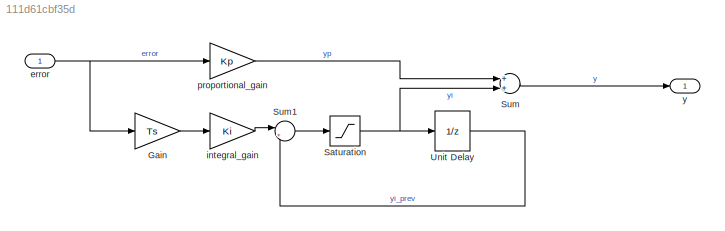
MODEL slx_111d61cbf35d
KIND model
CONFIG AbsTol = auto
CONFIG EnableMultiTasking = on
CONFIG FixedStep = Ts
CONFIG MaxStep = auto
CONFIG MinStep = auto
CONFIG RelTol = 1e-3
CONFIG SampleTimeConstraint = Unconstrained
CONFIG Solver = ode45
CONFIG SolverName = ode45
CONFIG StartTime = 0.0
CONFIG StopTime = 10.0
BLOCK [Gain] Gain
  Gain = Ts
BLOCK [Saturate] Saturation
  AttributesFormatString = Max: %<UpperLimit>\nMin: %<LowerLimit>
  InputPortMap = u0
  LowerLimit = -1
  Ports = [1, 1]
  UpperLimit = 1
BLOCK [Sum] Sum
  Ports = [2, 1]
BLOCK [Sum] Sum1
  IconShape = round
  Inputs = |++
  Ports = [2, 1]
BLOCK [UnitDelay] Unit Delay
  AttributesFormatString = yi0 = %<X0>\nSample time = %<SampleTime>
  SampleTime = Ts
BLOCK [Inport] error
  IconDisplay = Port number
BLOCK [Gain] integral_gain
  Gain = Ki
BLOCK [Gain] proportional_gain
  Gain = Kp
BLOCK [Outport] y
  IconDisplay = Port number
LINE Gain:1 -> integral_gain:1
NET Saturation:1 -> Sum:2, Unit Delay:1
LINE Sum1:1 -> Saturation:1
LINE Sum:1 -> y:1
LINE Unit Delay:1 -> Sum1:2
NET error:1 -> Gain:1, proportional_gain:1
LINE integral_gain:1 -> Sum1:1
LINE proportional_gain:1 -> Sum:1
note: NET lines group one-source signal fan-out (src -> all destinations, sorted); 1:1 wires keep LINE
